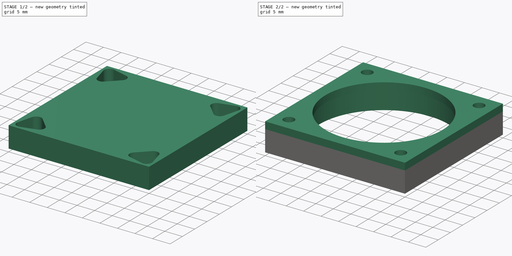
[diagram: build sequence overview — one tinted view per stage of 2, left to right]
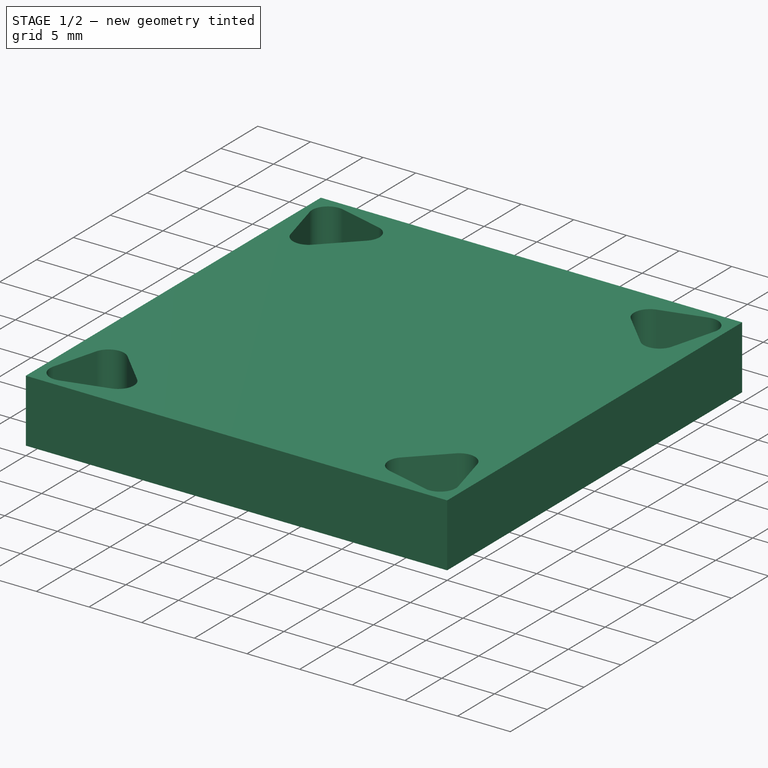
[diagram: stage 1 of 2 — iso view after this stage's code; geometry added in this stage tinted green]
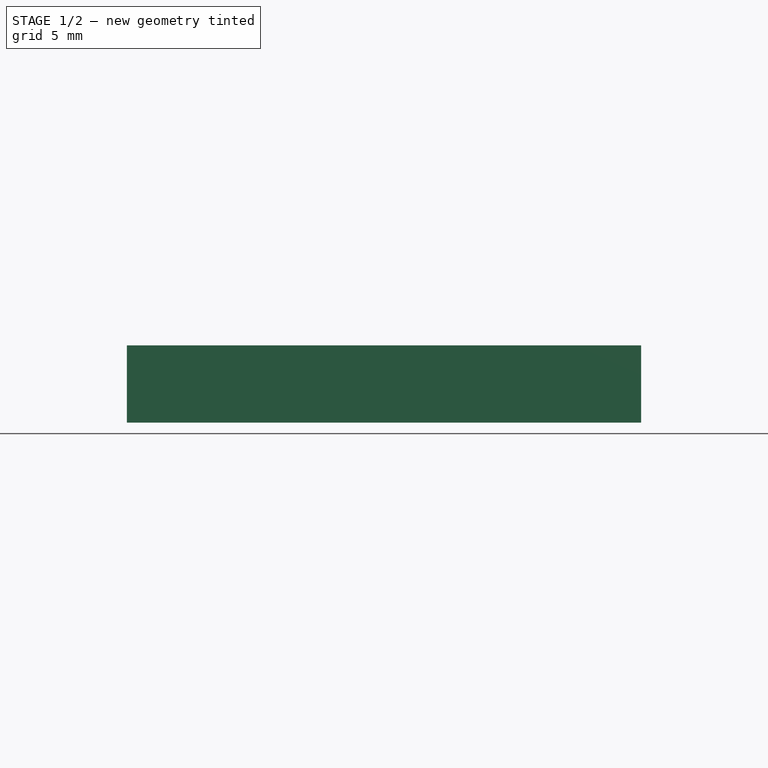
[diagram: stage 1 of 2 — front view after this stage's code; geometry added in this stage tinted green]
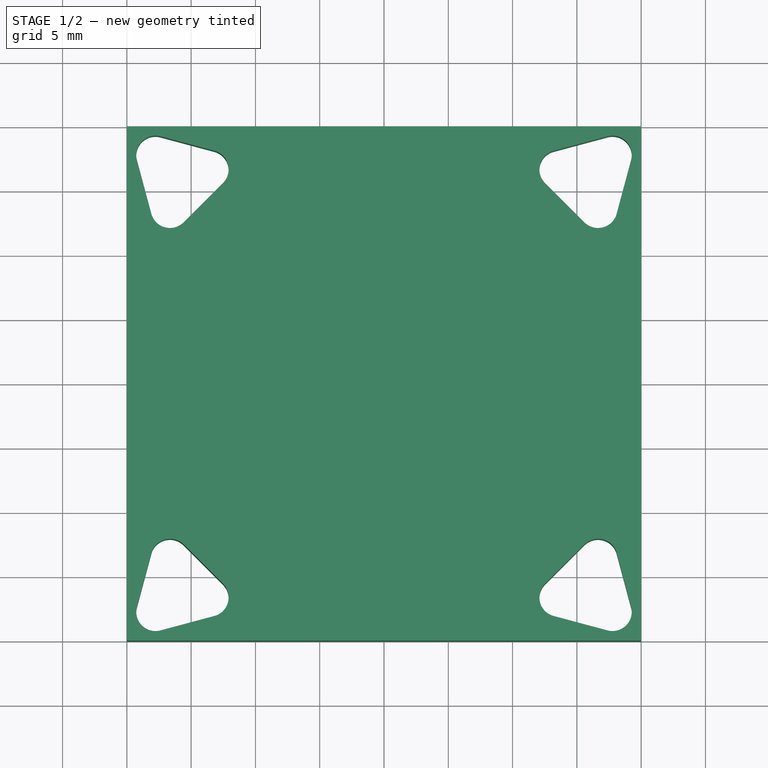
[diagram: stage 1 of 2 — top view after this stage's code; geometry added in this stage tinted green]
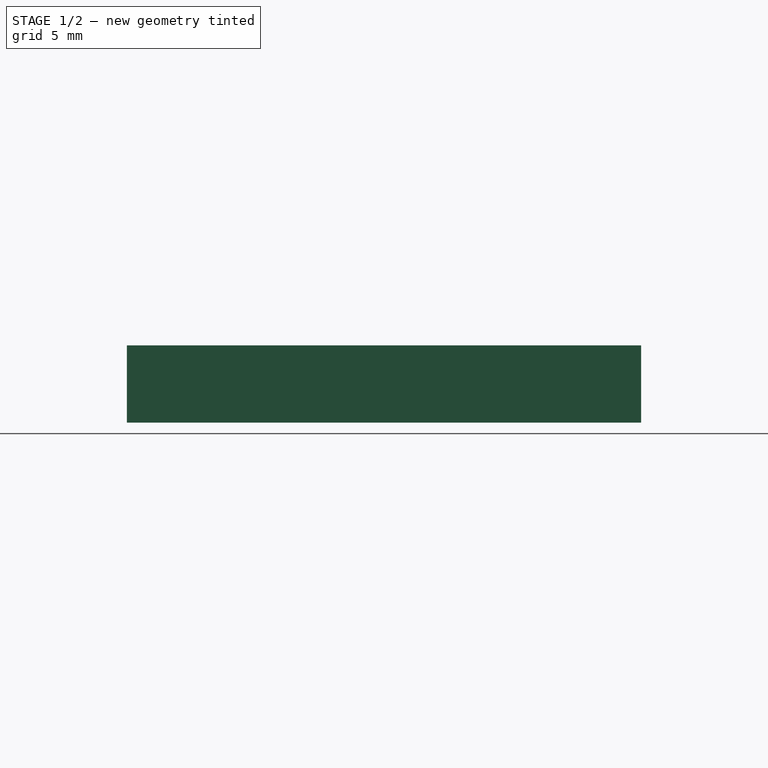
[diagram: stage 1 of 2 — right view after this stage's code; geometry added in this stage tinted green]
FCSTD DOCUMENT  (FreeCAD 0.20R29410 (Git))
Label: top_cover
License: All rights reserved
LicenseURL: http://en.wikipedia.org/wiki/All_rights_reserved
objects: Sketcher::SketchObject×4, PartDesign::Pad×2, PartDesign::Pocket×2, PartDesign::Body×1
note: 13 computed .brp shape members not serialized (recipe doc carries the construction recipe); baked Part::Feature solids carry a one-line shape summary decoded from their .brp

FEATURE [Sketcher::SketchObject] Sketch
  FullyConstrained = true
  MapMode = 5
  Support = -> [XY_Plane]
  sketch-geometry (6):
    g0: LineSegment StartX=-20 StartY=20 StartZ=0 EndX=20 EndY=20 EndZ=0
    g1: LineSegment StartX=20 StartY=20 StartZ=0 EndX=20 EndY=-20 EndZ=0
    g2: LineSegment StartX=20 StartY=-20 StartZ=0 EndX=-20 EndY=-20 EndZ=0
    g3: LineSegment StartX=-20 StartY=-20 StartZ=0 EndX=-20 EndY=20 EndZ=0
    g4: LineSegment StartX=-20 StartY=20 StartZ=0 EndX=20 EndY=-20 EndZ=0
    g5: LineSegment StartX=-20 StartY=-20 StartZ=0 EndX=20 EndY=20 EndZ=0
  constraints (16):
    c: Coincident(g0,g1)
    c: Coincident(g1,g2)
    c: Coincident(g2,g3)
    c: Coincident(g3,g0)
    c: Horizontal(g0)
    c: Horizontal(g2)
    c: Vertical(g1)
    c: Vertical(g3)
    c: Equal(g0,g3)
    c: Coincident(g4,g0)
    c: Coincident(g4,g1)
    c: Coincident(g5,g2)
    c: Coincident(g5,g0)
    c: PointOnObject(g-1,g5)
    c: PointOnObject(g-1,g4)
    c: DistanceY(g3,g3) = 40
FEATURE [PartDesign::Pad] Pad
  Direction = (0,0,1)
  Length = 6
  Length2 = 100
  Profile = -> Sketch
  ReferenceAxis = -> Sketch [N_Axis]
  Type = 0
FEATURE [Sketcher::SketchObject] Sketch004
  ExternalGeometry = -> [Pad]
  FullyConstrained = true
  MapMode = 5
  Placement = pos=(0,0,6) rot=(0,0,1;0rad)
  Support = -> [Pad]
  sketch-geometry (72):
    g0: LineSegment StartX=13.7546 StartY=18.2454 StartZ=0 EndX=12.9328 EndY=15.1781 EndZ=0
    g1: LineSegment StartX=12.9328 StartY=15.1781 StartZ=0 EndX=15.1781 EndY=12.9328 EndZ=0
    g2: LineSegment StartX=15.1781 StartY=12.9328 StartZ=0 EndX=18.2454 EndY=13.7546 EndZ=0
    g3: LineSegment StartX=18.2454 StartY=13.7546 StartZ=0 EndX=19.0672 EndY=16.8219 EndZ=0
    g4: LineSegment StartX=19.0672 StartY=16.8219 StartZ=0 EndX=16.8219 EndY=19.0672 EndZ=0
    g5: LineSegment StartX=16.8219 StartY=19.0672 StartZ=0 EndX=13.7546 EndY=18.2454 EndZ=0
    g6: Circle CenterX=16 CenterY=16 CenterZ=0 NormalX=0 NormalY=0 NormalZ=1 AngleXU=0 Radius=3.17543
    g7: LineSegment StartX=12.9328 StartY=15.1781 StartZ=0 EndX=12.5245 EndY=15.5864 EndZ=0
    g8: LineSegment StartX=13.7546 StartY=18.2454 StartZ=0 EndX=13.197 EndY=18.0959 EndZ=0
    g9: ArcOfCircle CenterX=13.5852 CenterY=16.647 CenterZ=0 NormalX=0 NormalY=0 NormalZ=1 AngleXU=0 Radius=1.5 StartAngle=1.8326 EndAngle=3.92699
    g10: LineSegment StartX=15.1781 StartY=12.9328 StartZ=0 EndX=15.5864 EndY=12.5245 EndZ=0
    g11: LineSegment StartX=18.2454 StartY=13.7546 StartZ=0 EndX=18.0959 EndY=13.197 EndZ=0
    g12: LineSegment StartX=16.8219 StartY=19.0672 StartZ=0 EndX=17.3795 EndY=19.2167 EndZ=0
    g13: LineSegment StartX=19.0672 StartY=16.8219 StartZ=0 EndX=19.2167 EndY=17.3795 EndZ=0
    g14: ArcOfCircle CenterX=16.647 CenterY=13.5852 CenterZ=0 NormalX=0 NormalY=0 NormalZ=1 AngleXU=0 Radius=1.5 StartAngle=3.92699 EndAngle=6.02139
    g15: ArcOfCircle CenterX=17.7678 CenterY=17.7678 CenterZ=0 NormalX=0 NormalY=0 NormalZ=1 AngleXU=0 Radius=1.5 StartAngle=6.02139 EndAngle=8.11578
    g16: LineSegment StartX=12.9328 StartY=-15.1781 StartZ=0 EndX=13.7546 EndY=-18.2454 EndZ=0
    g17: LineSegment StartX=13.7546 StartY=-18.2454 StartZ=0 EndX=16.8219 EndY=-19.0672 EndZ=0
    g18: LineSegment StartX=16.8219 StartY=-19.0672 StartZ=0 EndX=19.0672 EndY=-16.8219 EndZ=0
    g19: LineSegment StartX=19.0672 StartY=-16.8219 StartZ=0 EndX=18.2454 EndY=-13.7546 EndZ=0
    g20: LineSegment StartX=18.2454 StartY=-13.7546 StartZ=0 EndX=15.1781 EndY=-12.9328 EndZ=0
    g21: LineSegment StartX=15.1781 StartY=-12.9328 StartZ=0 EndX=12.9328 EndY=-15.1781 EndZ=0
    g22: Circle CenterX=16 CenterY=-16 CenterZ=0 NormalX=0 NormalY=0 NormalZ=1 AngleXU=0 Radius=3.17543
    g23: LineSegment StartX=13.7546 StartY=-18.2454 StartZ=0 EndX=13.197 EndY=-18.0959 EndZ=0
    g24: LineSegment StartX=12.9328 StartY=-15.1781 StartZ=0 EndX=12.5245 EndY=-15.5864 EndZ=0
    g25: ArcOfCircle CenterX=13.5852 CenterY=-16.647 CenterZ=0 NormalX=0 NormalY=0 NormalZ=1 AngleXU=0 Radius=1.5 StartAngle=2.35619 EndAngle=4.45059
    g26: LineSegment StartX=16.8219 StartY=-19.0672 StartZ=0 EndX=17.3795 EndY=-19.2167 EndZ=0
    g27: LineSegment StartX=19.0672 StartY=-16.8219 StartZ=0 EndX=19.2167 EndY=-17.3795 EndZ=0
    g28: LineSegment StartX=15.1781 StartY=-12.9328 StartZ=0 EndX=15.5864 EndY=-12.5245 EndZ=0
    g29: LineSegment StartX=18.2454 StartY=-13.7546 StartZ=0 EndX=18.0959 EndY=-13.197 EndZ=0
    g30: ArcOfCircle CenterX=17.7678 CenterY=-17.7678 CenterZ=0 NormalX=0 NormalY=0 NormalZ=1 AngleXU=0 Radius=1.5 StartAngle=4.45059 EndAngle=6.54498
    g31: ArcOfCircle CenterX=16.647 CenterY=-13.5852 CenterZ=0 NormalX=0 NormalY=0 NormalZ=1 AngleXU=0 Radius=1.5 StartAngle=0.261799 EndAngle=2.35619
    g32: LineSegment StartX=-12.9328 StartY=15.1781 StartZ=0 EndX=-13.7546 EndY=18.2454 EndZ=0
    g33: LineSegment StartX=-13.7546 StartY=18.2454 StartZ=0 EndX=-16.8219 EndY=19.0672 EndZ=0
    g34: LineSegment StartX=-16.8219 StartY=19.0672 StartZ=0 EndX=-19.0672 EndY=16.8219 EndZ=0
    g35: LineSegment StartX=-19.0672 StartY=16.8219 StartZ=0 EndX=-18.2454 EndY=13.7546 EndZ=0
    g36: LineSegment StartX=-18.2454 StartY=13.7546 StartZ=0 EndX=-15.1781 EndY=12.9328 EndZ=0
    g37: LineSegment StartX=-15.1781 StartY=12.9328 StartZ=0 EndX=-12.9328 EndY=15.1781 EndZ=0
    g38: Circle CenterX=-16 CenterY=16 CenterZ=0 NormalX=0 NormalY=0 NormalZ=1 AngleXU=0 Radius=3.17543
    g39: LineSegment StartX=-13.7546 StartY=18.2454 StartZ=0 EndX=-13.197 EndY=18.0959 EndZ=0
    g40: LineSegment StartX=-12.9328 StartY=15.1781 StartZ=0 EndX=-12.5245 EndY=15.5864 EndZ=0
    g41: ArcOfCircle CenterX=-13.5852 CenterY=16.647 CenterZ=0 NormalX=0 NormalY=0 NormalZ=1 AngleXU=0 Radius=1.5 StartAngle=5.49779 EndAngle=7.59218
    g42: LineSegment StartX=-16.8219 StartY=19.0672 StartZ=0 EndX=-17.3795 EndY=19.2167 EndZ=0
    g43: LineSegment StartX=-19.0672 StartY=16.8219 StartZ=0 EndX=-19.2167 EndY=17.3795 EndZ=0
    g44: LineSegment StartX=-15.1781 StartY=12.9328 StartZ=0 EndX=-15.5864 EndY=12.5245 EndZ=0
    g45: LineSegment StartX=-18.2454 StartY=13.7546 StartZ=0 EndX=-18.0959 EndY=13.197 EndZ=0
    g46: ArcOfCircle CenterX=-17.7678 CenterY=17.7678 CenterZ=0 NormalX=0 NormalY=0 NormalZ=1 AngleXU=0 Radius=1.5 StartAngle=1.309 EndAngle=3.40339
    g47: ArcOfCircle CenterX=-16.647 CenterY=13.5852 CenterZ=0 NormalX=0 NormalY=0 NormalZ=1 AngleXU=0 Radius=1.5 StartAngle=3.40339 EndAngle=5.49779
    g48: LineSegment StartX=-13.7546 StartY=-18.2454 StartZ=0 EndX=-12.9328 EndY=-15.1781 EndZ=0
    g49: LineSegment StartX=-12.9328 StartY=-15.1781 StartZ=0 EndX=-15.1781 EndY=-12.9328 EndZ=0
    g50: LineSegment StartX=-15.1781 StartY=-12.9328 StartZ=0 EndX=-18.2454 EndY=-13.7546 EndZ=0
    g51: LineSegment StartX=-18.2454 StartY=-13.7546 StartZ=0 EndX=-19.0672 EndY=-16.8219 EndZ=0
    g52: LineSegment StartX=-19.0672 StartY=-16.8219 StartZ=0 EndX=-16.8219 EndY=-19.0672 EndZ=0
    g53: LineSegment StartX=-16.8219 StartY=-19.0672 StartZ=0 EndX=-13.7546 EndY=-18.2454 EndZ=0
    g54: Circle CenterX=-16 CenterY=-16 CenterZ=0 NormalX=0 NormalY=0 NormalZ=1 AngleXU=0 Radius=3.17543
    g55: LineSegment StartX=-12.9328 StartY=-15.1781 StartZ=0 EndX=-12.5245 EndY=-15.5864 EndZ=0
    g56: LineSegment StartX=-13.7546 StartY=-18.2454 StartZ=0 EndX=-13.197 EndY=-18.0959 EndZ=0
    g57: ArcOfCircle CenterX=-13.5852 CenterY=-16.647 CenterZ=0 NormalX=0 NormalY=0 NormalZ=1 AngleXU=0 Radius=1.5 StartAngle=4.97419 EndAngle=7.06858
    g58: LineSegment StartX=-15.1781 StartY=-12.9328 StartZ=0 EndX=-15.5864 EndY=-12.5245 EndZ=0
    g59: LineSegment StartX=-18.2454 StartY=-13.7546 StartZ=0 EndX=-18.0959 EndY=-13.197 EndZ=0
    g60: LineSegment StartX=-16.8219 StartY=-19.0672 StartZ=0 EndX=-17.3795 EndY=-19.2167 EndZ=0
    g61: LineSegment StartX=-19.0672 StartY=-16.8219 StartZ=0 EndX=-19.2167 EndY=-17.3795 EndZ=0
    g62: ArcOfCircle CenterX=-16.647 CenterY=-13.5852 CenterZ=0 NormalX=0 NormalY=0 NormalZ=1 AngleXU=0 Radius=1.5 StartAngle=0.785398 EndAngle=2.87979
    g63: ArcOfCircle CenterX=-17.7678 CenterY=-17.7678 CenterZ=0 NormalX=0 NormalY=0 NormalZ=1 AngleXU=0 Radius=1.5 StartAngle=2.87979 EndAngle=4.97419
    g64: LineSegment StartX=-20 StartY=20 StartZ=0 EndX=-16 EndY=16 EndZ=0
    g65: LineSegment StartX=16 StartY=16 StartZ=0 EndX=20 EndY=20 EndZ=0
    g66: LineSegment StartX=-16 StartY=-16 StartZ=0 EndX=-20 EndY=-20 EndZ=0
    g67: LineSegment StartX=16 StartY=-16 StartZ=0 EndX=20 EndY=-20 EndZ=0
    g68: Circle CenterX=-16 CenterY=16 CenterZ=0 NormalX=0 NormalY=0 NormalZ=1 AngleXU=0 Radius=4
    g69: Circle CenterX=16 CenterY=16 CenterZ=0 NormalX=0 NormalY=0 NormalZ=1 AngleXU=0 Radius=4
    g70: Circle CenterX=-16 CenterY=-16 CenterZ=0 NormalX=0 NormalY=0 NormalZ=1 AngleXU=0 Radius=4
    g71: Circle CenterX=16 CenterY=-16 CenterZ=0 NormalX=0 NormalY=0 NormalZ=1 AngleXU=0 Radius=4
  constraints (168):
    c: Coincident(g0,g1)
    c: Coincident(g1,g2)
    c: Coincident(g2,g3)
    c: Coincident(g3,g4)
    c: Coincident(g4,g5)
    c: Coincident(g5,g0)
    c: Equal(g0, g1-g5) x5
    c: PointOnObject(g0,g6)
    c: PointOnObject(g1,g6)
    c: PointOnObject(g2,g6)
    c: PointOnObject(g3,g6)
    c: PointOnObject(g4,g6)
    c: PointOnObject(g5,g6)
    c: Distance(g0,g3) = 5.5
    c: Coincident(g7,g1)
    c: Coincident(g8,g5)
    c: Parallel(g5,g8)
    c: Parallel(g7,g1)
    c: Tangent(g8,g9) = -1.5708
    c: Tangent(g7,g9) = 1.5708
    c: Diameter(g9) = 3
    c: Coincident(g10,g1)
    c: Coincident(g11,g3)
    c: Coincident(g12,g5)
    c: Coincident(g13,g3)
    c: Parallel(g10,g1)
    c: Parallel(g11,g3)
    c: Parallel(g12,g5)
    c: Parallel(g13,g3)
    c: Tangent(g11,g14) = 1.5708
    c: Tangent(g10,g14) = -1.5708
    c: Tangent(g13,g15) = -1.5708
    c: Tangent(g12,g15) = 1.5708
    c: Equal(g9,g14)
    c: Equal(g14,g15)
    c: Coincident(g16,g17)
    c: Coincident(g17,g18)
    c: Coincident(g18,g19)
    c: Coincident(g19,g20)
    c: Coincident(g20,g21)
    c: Coincident(g21,g16)
    c: Equal(g16, g17-g21) x5
    c: PointOnObject(g16,g22)
    c: PointOnObject(g17,g22)
    c: PointOnObject(g18,g22)
    c: PointOnObject(g19,g22)
    c: PointOnObject(g20,g22)
    c: PointOnObject(g21,g22)
    c: Distance(g16,g19) = 5.5
    c: Coincident(g23,g17)
    c: Coincident(g24,g21)
    c: Parallel(g21,g24)
    c: Parallel(g23,g17)
    c: Tangent(g24,g25) = -1.5708
    c: Tangent(g23,g25) = 1.5708
    c: Equal(g9,g25) = 3
    c: Coincident(g26,g17)
    c: Coincident(g27,g19)
    c: Coincident(g28,g21)
    c: Coincident(g29,g19)
    c: Parallel(g26,g17)
    c: Parallel(g27,g19)
    c: Parallel(g28,g21)
    c: Parallel(g29,g19)
    c: Tangent(g27,g30) = 1.5708
    c: Tangent(g26,g30) = -1.5708
    c: Tangent(g29,g31) = -1.5708
    c: Tangent(g28,g31) = 1.5708
    c: Equal(g25,g30)
    c: Equal(g30,g31)
    c: Coincident(g32,g33)
    c: Coincident(g33,g34)
    c: Coincident(g34,g35)
    c: Coincident(g35,g36)
    c: Coincident(g36,g37)
    c: Coincident(g37,g32)
    c: Equal(g32, g33-g37) x5
    c: PointOnObject(g32,g38)
    c: PointOnObject(g33,g38)
    c: PointOnObject(g34,g38)
    c: PointOnObject(g35,g38)
    c: PointOnObject(g36,g38)
    c: PointOnObject(g37,g38)
    c: Distance(g32,g35) = 5.5
    c: Coincident(g39,g33)
    c: Coincident(g40,g37)
    c: Parallel(g37,g40)
    c: Parallel(g39,g33)
    c: Tangent(g40,g41) = -1.5708
    c: Tangent(g39,g41) = 1.5708
    c: Equal(g9,g41) = 3
    c: Coincident(g42,g33)
    c: Coincident(g43,g35)
    c: Coincident(g44,g37)
    c: Coincident(g45,g35)
    c: Parallel(g42,g33)
    c: Parallel(g43,g35)
    c: Parallel(g44,g37)
    c: Parallel(g45,g35)
    c: Tangent(g43,g46) = 1.5708
    c: Tangent(g42,g46) = -1.5708
    c: Tangent(g45,g47) = -1.5708
    c: Tangent(g44,g47) = 1.5708
    c: Equal(g41,g46)
    c: Equal(g46,g47)
    c: Coincident(g48,g49)
    c: Coincident(g49,g50)
    c: Coincident(g50,g51)
    c: Coincident(g51,g52)
    c: Coincident(g52,g53)
    c: Coincident(g53,g48)
    c: Equal(g48, g49-g53) x5
    c: PointOnObject(g48,g54)
    c: PointOnObject(g49,g54)
    c: PointOnObject(g50,g54)
    c: PointOnObject(g51,g54)
    c: PointOnObject(g52,g54)
    c: PointOnObject(g53,g54)
    c: Distance(g48,g51) = 5.5
    c: Coincident(g55,g49)
    c: Coincident(g56,g53)
    c: Parallel(g53,g56)
    c: Parallel(g55,g49)
    c: Tangent(g56,g57) = -1.5708
    c: Tangent(g55,g57) = 1.5708
    c: Equal(g9,g57) = 3
    c: Coincident(g58,g49)
    c: Coincident(g59,g51)
    c: Coincident(g60,g53)
    c: Coincident(g61,g51)
    c: Parallel(g58,g49)
    c: Parallel(g59,g51)
    c: Parallel(g60,g53)
    c: Parallel(g61,g51)
    c: Tangent(g59,g62) = 1.5708
    c: Tangent(g58,g62) = -1.5708
    c: Tangent(g61,g63) = -1.5708
    c: Tangent(g60,g63) = 1.5708
    c: Equal(g57,g62)
    c: Equal(g62,g63)
    c: Coincident(g64,g38)
    c: PointOnObject(g46,g64)
    c: Coincident(g65,g6)
    c: PointOnObject(g15,g65)
    c: Coincident(g66,g54)
    c: PointOnObject(g63,g66)
    c: Coincident(g67,g22)
    c: PointOnObject(g30,g67)
    c: Coincident(g64,g-4)
    c: Coincident(g68,g38)
    c: Diameter(g68) = 8
    c: Tangent(g68,g-3)
    c: Tangent(g68,g-4)
    c: Coincident(g69,g6)
    c: Coincident(g65,g-5)
    c: Coincident(g67,g-6)
    c: Coincident(g66,g-6)
    c: Coincident(g70,g54)
    c: Coincident(g71,g22)
    c: Equal(g68,g69)
    c: Equal(g69,g70)
    c: Equal(g70,g71)
    c: Tangent(g69,g-5)
    c: Tangent(g69,g-3)
    c: Tangent(g71,g-6)
    c: Tangent(g71,g-5)
    c: Tangent(g70,g-6)
    c: Tangent(g70,g-4)
FEATURE [PartDesign::Pocket] Pocket
  BaseFeature = -> Pad
  Direction = (0,0,-1)
  Length = 5
  Length2 = 5
  Profile = -> Sketch004
  ReferenceAxis = -> Sketch004 [N_Axis]
  Type = 1
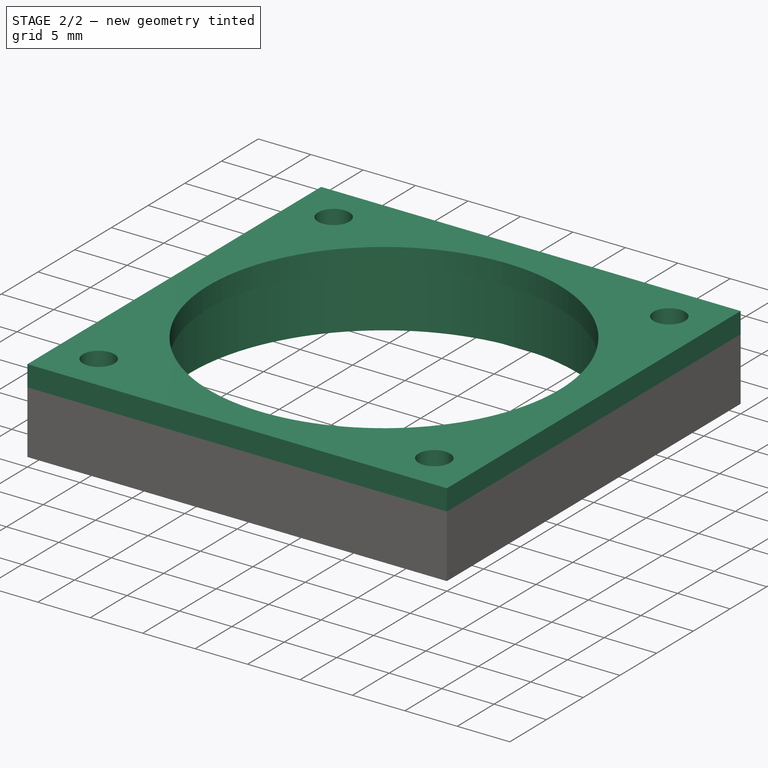
[diagram: stage 2 of 2 — iso view after this stage's code; geometry added in this stage tinted green]
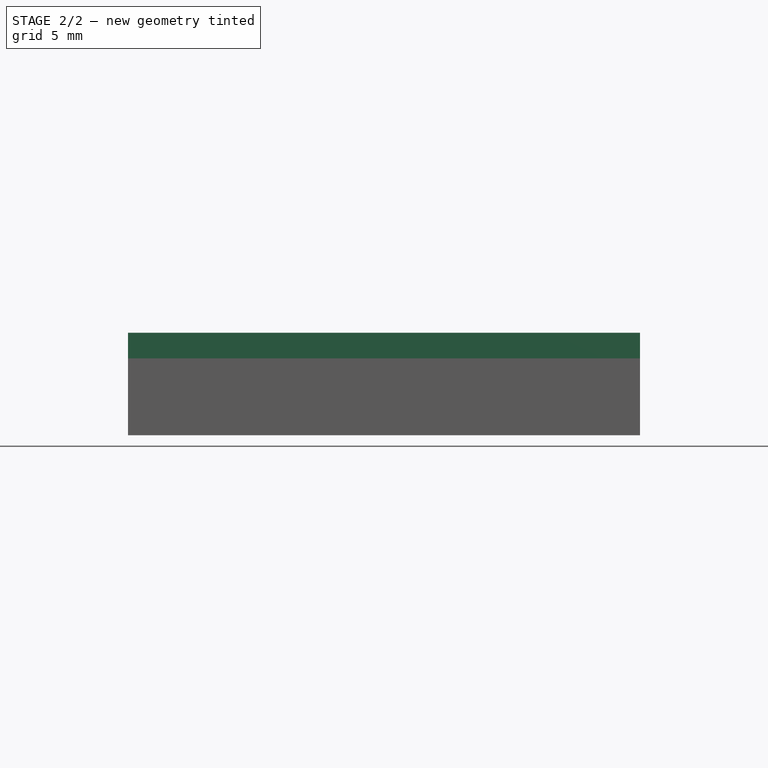
[diagram: stage 2 of 2 — front view after this stage's code; geometry added in this stage tinted green]
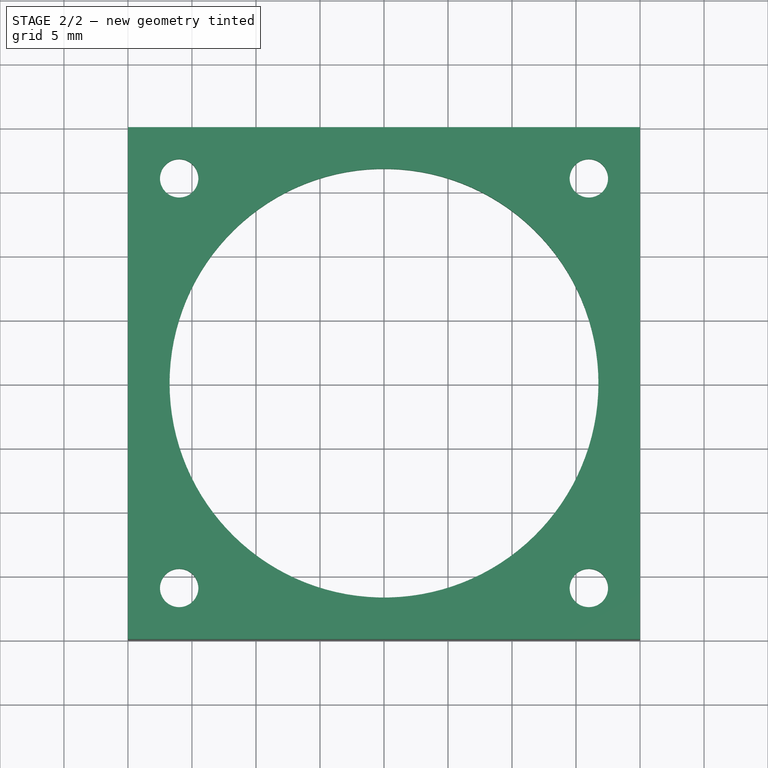
[diagram: stage 2 of 2 — top view after this stage's code; geometry added in this stage tinted green]
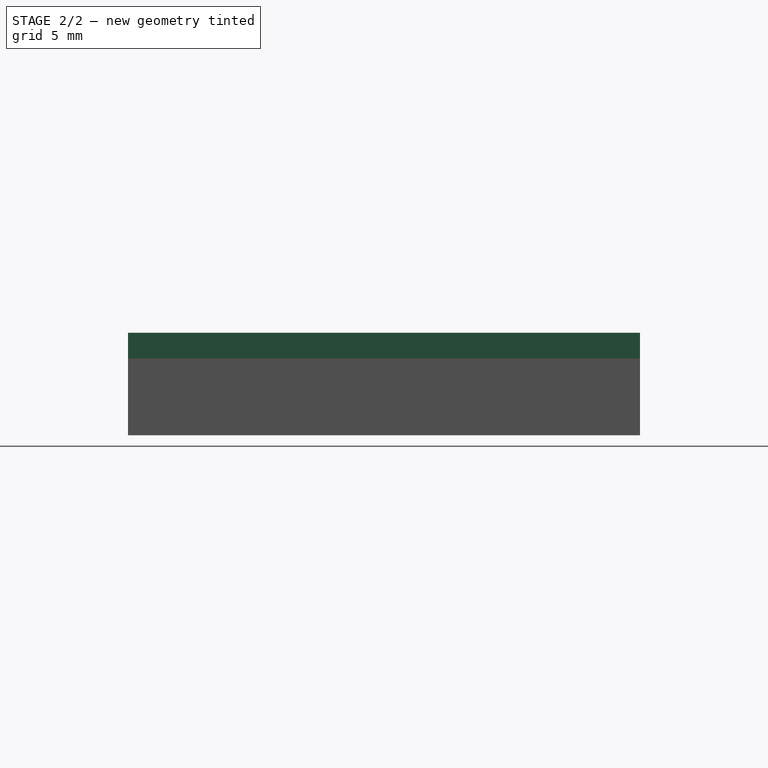
[diagram: stage 2 of 2 — right view after this stage's code; geometry added in this stage tinted green]
FEATURE [Sketcher::SketchObject] Sketch006
  FullyConstrained = true
  MapMode = 5
  Placement = pos=(0,0,6) rot=(0,0,1;0rad)
  Support = -> [Pocket]
  sketch-geometry (1):
    g0: Circle CenterX=0 CenterY=0 CenterZ=0 NormalX=0 NormalY=0 NormalZ=1 AngleXU=0 Radius=18.5
  constraints (2):
    c: Coincident(g0,g-1)
    c: Diameter(g0) = 37
FEATURE [PartDesign::Pocket] Pocket001
  BaseFeature = -> Pocket
  Direction = (0,0,-1)
  Length = 5
  Length2 = 5
  Profile = -> Sketch006
  ReferenceAxis = -> Sketch006 [N_Axis]
  Type = 1
FEATURE [Sketcher::SketchObject] Sketch007
  ExternalGeometry = -> [Pocket001]
  FullyConstrained = true
  MapMode = 5
  Placement = pos=(0,0,6) rot=(0,0,1;0rad)
  Support = -> [Pocket001]
  expr: Constraints[11] = (30 + 37) / 2
  sketch-geometry (13):
    g0: Circle CenterX=0 CenterY=0 CenterZ=0 NormalX=0 NormalY=0 NormalZ=1 AngleXU=0 Radius=16.75
    g1: LineSegment StartX=-20 StartY=20 StartZ=0 EndX=20 EndY=20 EndZ=0
    g2: LineSegment StartX=20 StartY=20 StartZ=0 EndX=20 EndY=-20 EndZ=0
    g3: LineSegment StartX=20 StartY=-20 StartZ=0 EndX=-20 EndY=-20 EndZ=0
    g4: LineSegment StartX=-20 StartY=-20 StartZ=0 EndX=-20 EndY=20 EndZ=0
    g5: Circle CenterX=-16 CenterY=16 CenterZ=0 NormalX=0 NormalY=0 NormalZ=1 AngleXU=0 Radius=1.5
    g6: Circle CenterX=-16 CenterY=16 CenterZ=0 NormalX=0 NormalY=0 NormalZ=1 AngleXU=0 Radius=4
    g7: Circle CenterX=16 CenterY=16 CenterZ=0 NormalX=0 NormalY=0 NormalZ=1 AngleXU=0 Radius=1.5
    g8: Circle CenterX=16 CenterY=16 CenterZ=0 NormalX=0 NormalY=0 NormalZ=1 AngleXU=0 Radius=4
    g9: Circle CenterX=16 CenterY=-16 CenterZ=0 NormalX=0 NormalY=0 NormalZ=1 AngleXU=0 Radius=1.5
    g10: Circle CenterX=16 CenterY=-16 CenterZ=0 NormalX=0 NormalY=0 NormalZ=1 AngleXU=0 Radius=4
    g11: Circle CenterX=-16 CenterY=-16 CenterZ=0 NormalX=0 NormalY=0 NormalZ=1 AngleXU=0 Radius=1.5
    g12: Circle CenterX=-16 CenterY=-16 CenterZ=0 NormalX=0 NormalY=0 NormalZ=1 AngleXU=0 Radius=4
  constraints (32):
    c: Coincident(g0,g-1)
    c: Coincident(g1,g2)
    c: Coincident(g2,g3)
    c: Coincident(g3,g4)
    c: Coincident(g4,g1)
    c: Horizontal(g1)
    c: Horizontal(g3)
    c: Vertical(g2)
    c: Vertical(g4)
    c: Coincident(g1,g-4)
    c: Coincident(g2,g-6)
    c: Diameter(g0) = 33.5
    c: Coincident(g6,g5)
    c: Tangent(g6,g4)
    c: Tangent(g1,g6)
    c: Diameter(g6) = 8
    c: Diameter(g5) = 3
    c: Coincident(g8,g7)
    c: Coincident(g10,g9)
    c: Coincident(g12,g11)
    c: Tangent(g12,g3)
    c: Tangent(g12,g4)
    c: Tangent(g10,g2)
    c: Tangent(g10,g3)
    c: Tangent(g8,g2)
    c: Tangent(g8,g1)
    c: Equal(g8,g6)
    c: Equal(g6,g12)
    c: Equal(g12,g10)
    c: Equal(g7,g5)
    c: Equal(g5,g11)
    c: Equal(g11,g9)
FEATURE [PartDesign::Pad] Pad001
  BaseFeature = -> Pocket001
  Direction = (0,0,1)
  Length = 2
  Length2 = 10
  Profile = -> Sketch007
  ReferenceAxis = -> Sketch007 [N_Axis]
  Type = 0
FEATURE [PartDesign::Body] Body
  Group = -> [Sketch,Pad,Sketch004,Sketch006,Pocket,Pocket001,Sketch007,Pad001]
  Origin = -> Origin
  Tip = -> Pad001
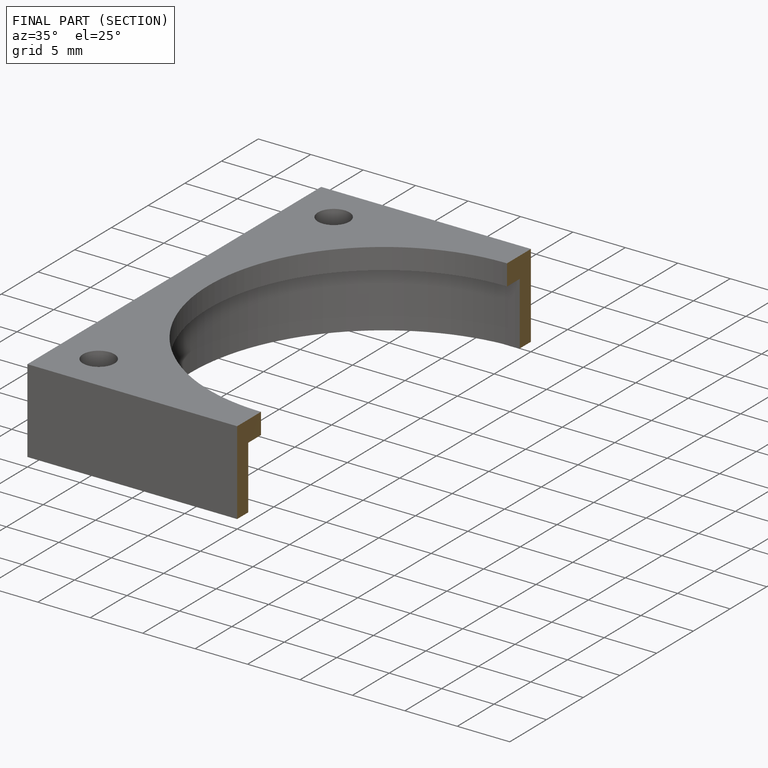
[diagram: finished part — half-section view (interior)]
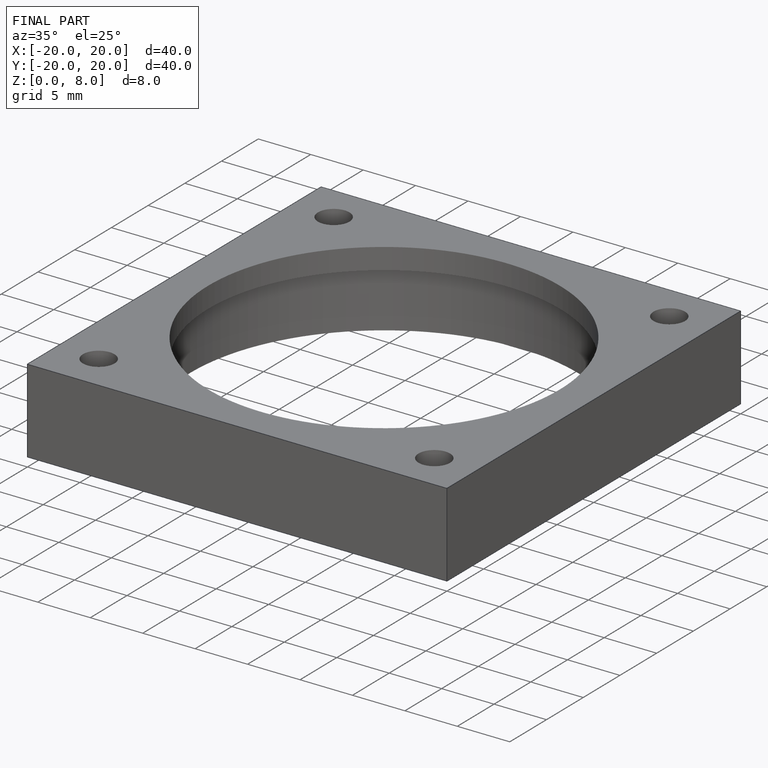
[diagram: finished part — iso view with bounding-box wireframe]
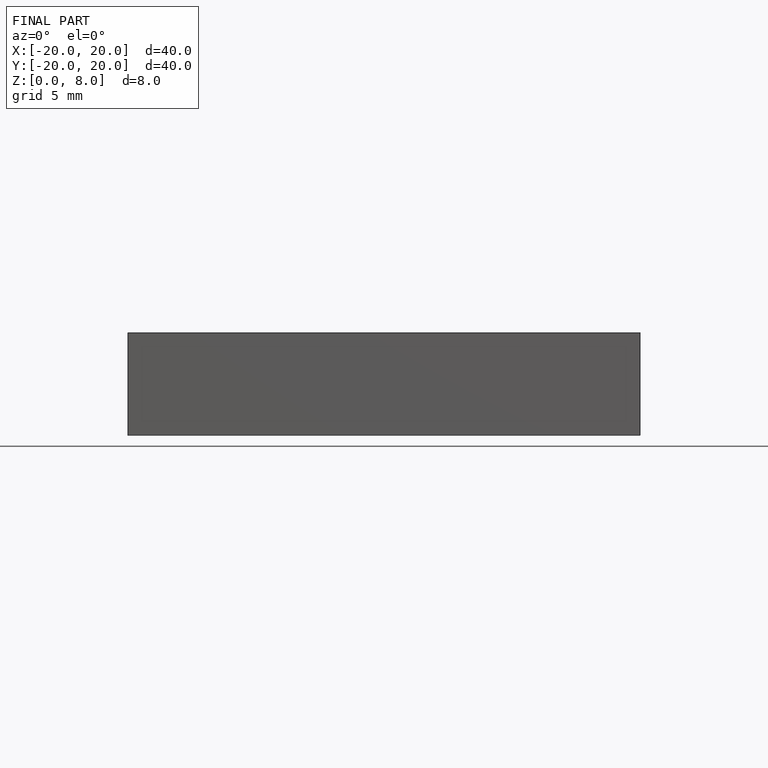
[diagram: finished part — front view with bounding-box wireframe]
